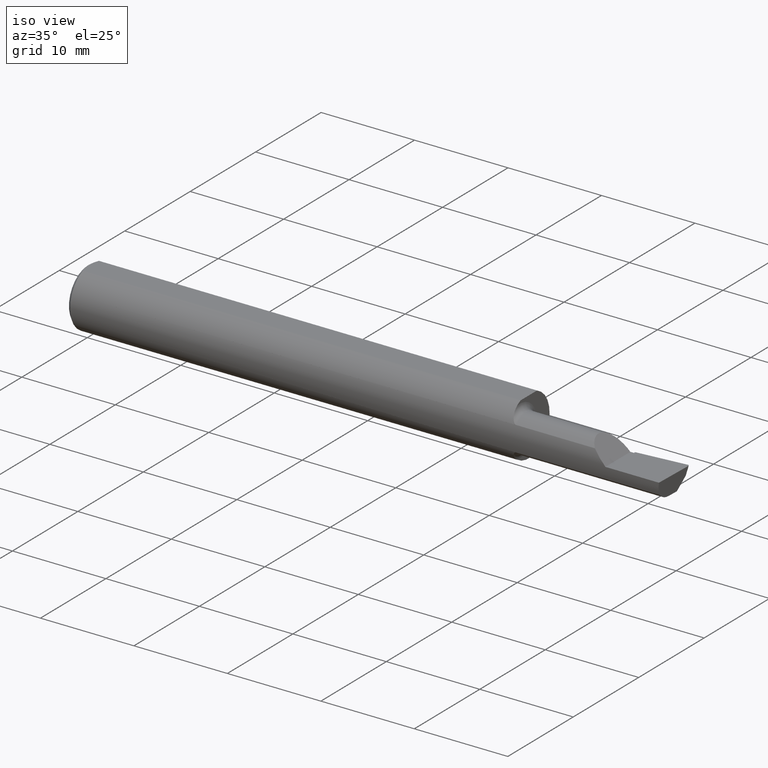
[diagram: clean part render]
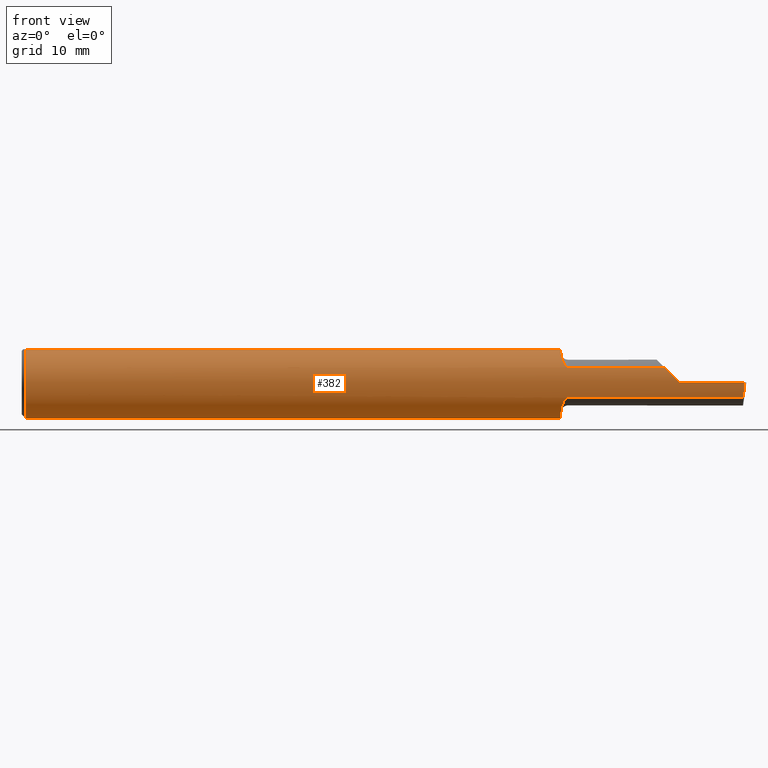
[diagram: tour spotlight — one face highlighted and labeled with its STEP entity id]
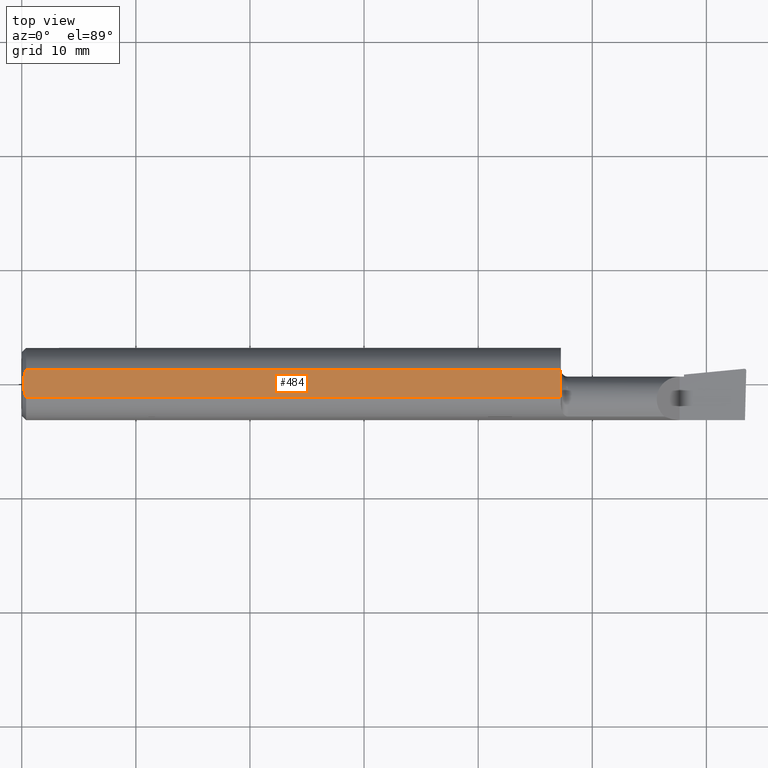
[diagram: tour spotlight — one face highlighted and labeled with its STEP entity id]
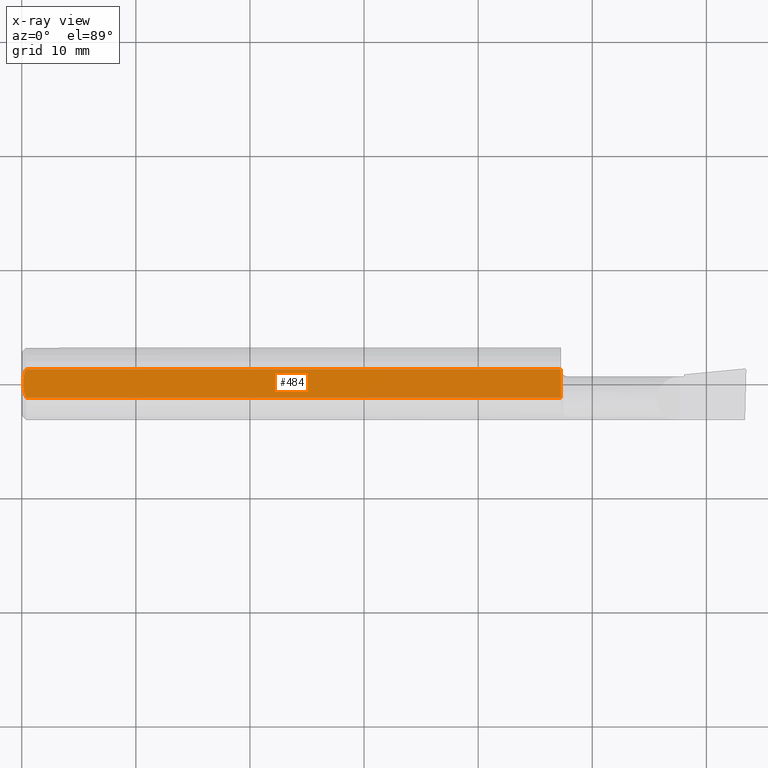
[diagram: x-ray of the same camera — body ghosted, this tour face saturated]
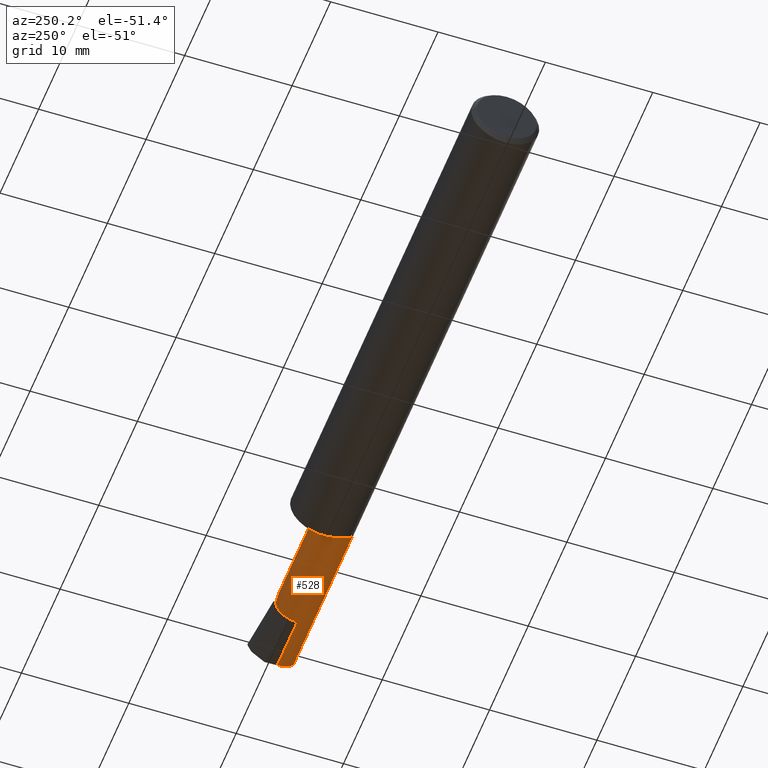
[diagram: tour spotlight — one face highlighted and labeled with its STEP entity id]
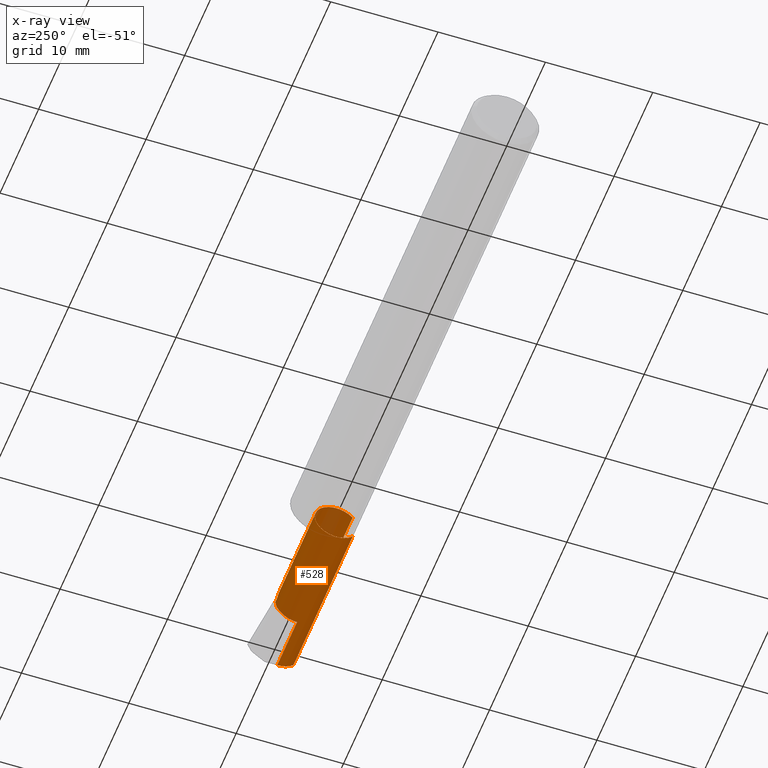
[diagram: x-ray of the same camera — body ghosted, this tour face saturated]
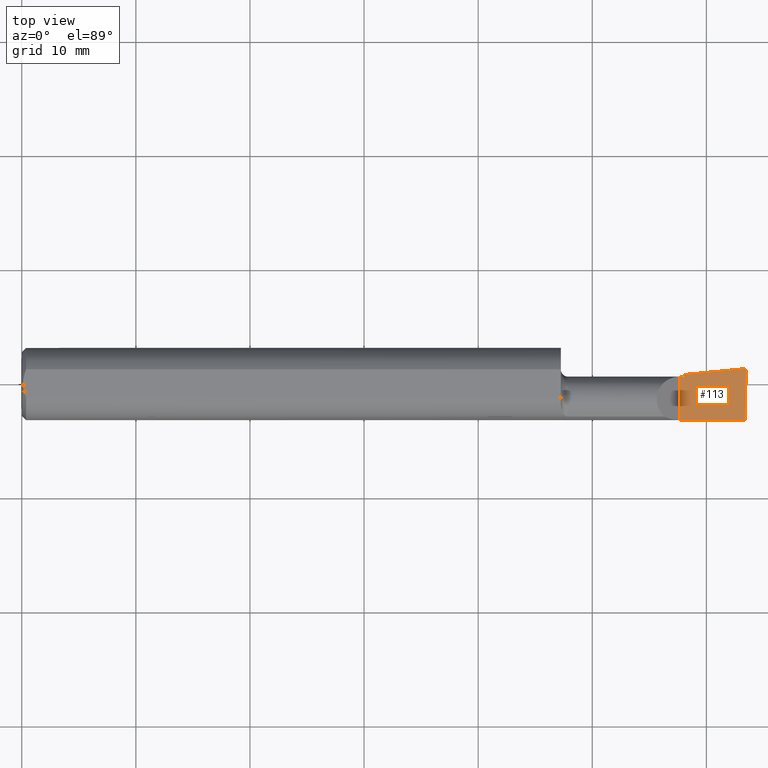
[diagram: tour spotlight — one face highlighted and labeled with its STEP entity id]
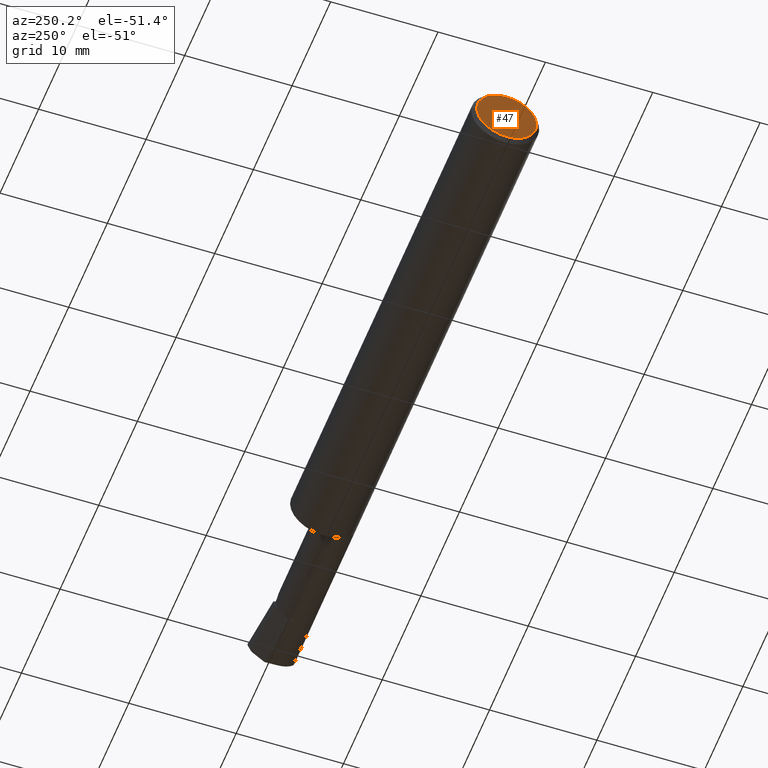
[diagram: tour spotlight — one face highlighted and labeled with its STEP entity id]
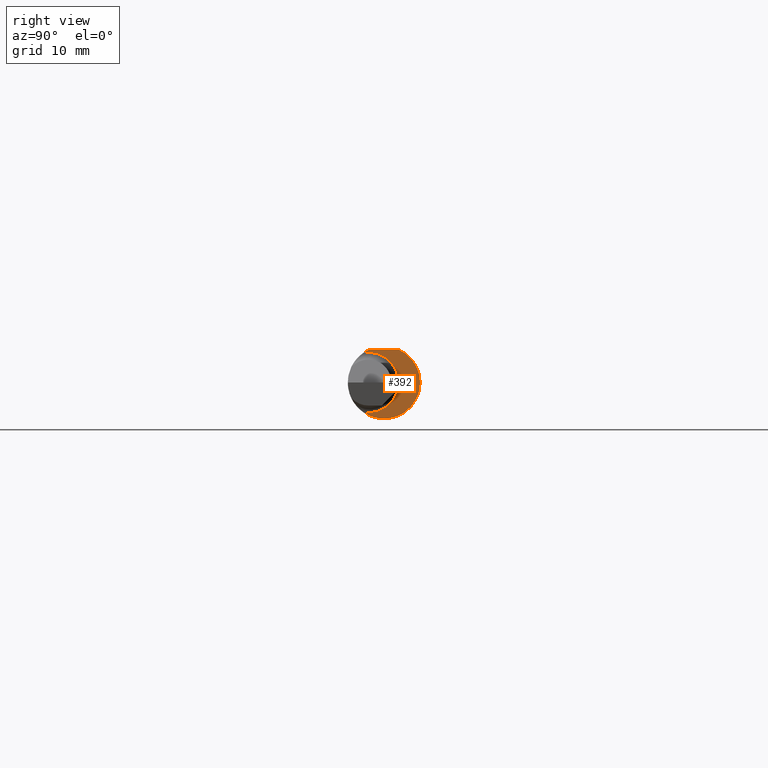
[diagram: tour spotlight — one face highlighted and labeled with its STEP entity id]
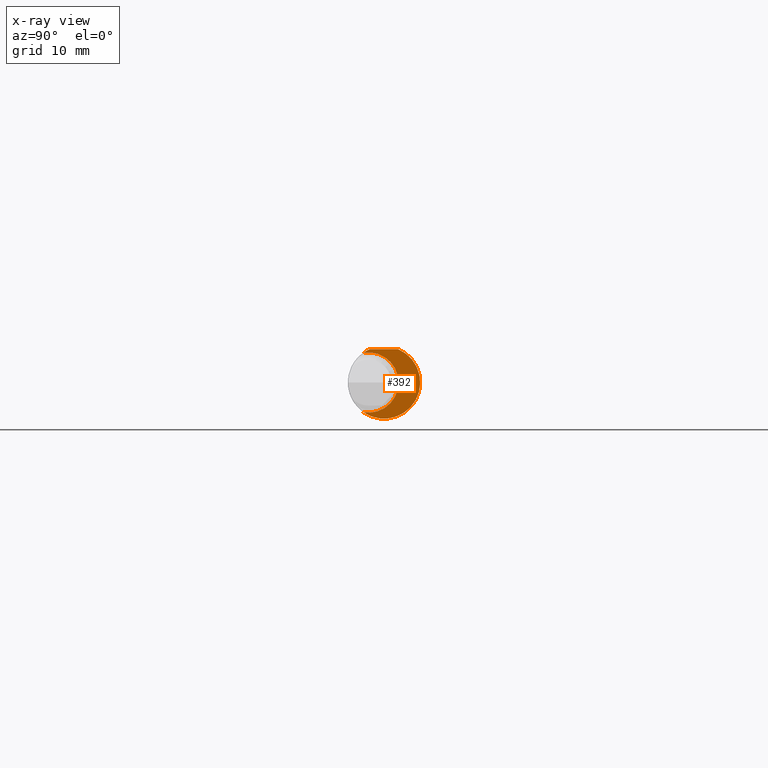
[diagram: x-ray of the same camera — body ghosted, this tour face saturated]
A machine part: a face-by-face anatomy tour. The part has 19 B-rep faces; the first image is the clean iso view, then the 6 largest visible faces are spotlighted one at a time (largest first), each with its STEP entity span.

Face 1 — front view, entity #382. In plain terms, the highlighted cylindrical surface (edge-blend (fillet) strip) has radius 3.1712 mm, axis along (-1, -0, -0).
Definition (entity closure, byte-faithful):
#8 = AXIS2_PLACEMENT_3D ( 'NONE', #100, #424, #656 ) ;
#9 = CARTESIAN_POINT ( 'NONE',  ( 1.859999999999999876, 0.0000000000000000000, 0.0000000000000000000 ) ) ;
#15 = CARTESIAN_POINT ( 'NONE',  ( 0.01499999999999999424, 0.04895916665957457392, 0.1148500000000000076 ) ) ;
#26 = CARTESIAN_POINT ( 'NONE',  ( 1.885000000000000009, -0.1133222222222224629, 0.05239843939104716491 ) ) ;
#33 = VERTEX_POINT ( 'NONE', #329 ) ;
#34 = CARTESIAN_POINT ( 'NONE',  ( 1.860418395875213626, -0.08085314529530901462, 0.09533153891603386720 ) ) ;
#37 = CARTESIAN_POINT ( 'NONE',  ( 2.493107549887203067, -0.1248500000000000165, -0.01816670945505176327 ) ) ;
#43 = CARTESIAN_POINT ( 'NONE',  ( 1.862066153268988611, -0.08982957272875712051, 0.08692514756739018467 ) ) ;
#45 = CARTESIAN_POINT ( 'NONE',  ( 1.883393805215129557, -0.1133222222232598414, 0.05239843938880368174 ) ) ;
#51 = VERTEX_POINT ( 'NONE', #26 ) ;
#54 = CIRCLE ( 'NONE', #434, 0.1248500000000000026 ) ;
#66 = ORIENTED_EDGE ( 'NONE', *, *, #541, .T. ) ;
#68 = CARTESIAN_POINT ( 'NONE',  ( 0.01499999999999999424, 0.0000000000000000000, 0.0000000000000000000 ) ) ;
#74 = EDGE_CURVE ( 'NONE', #172, #258, #538, .T. ) ;
#76 =( BOUNDED_CURVE ( )  B_SPLINE_CURVE ( 3, ( #272, #430, #334, #190 ),
 .UNSPECIFIED., .F., .F. ) 
 B_SPLINE_CURVE_WITH_KNOTS ( ( 4, 4 ),
 ( 4.712388980384688786, 5.145493999647444028 ),
 .UNSPECIFIED. ) 
 CURVE ( )  GEOMETRIC_REPRESENTATION_ITEM ( )  RATIONAL_B_SPLINE_CURVE ( ( 1.000000000000000000, 0.9844293286710339430, 0.9844293286710339430, 1.000000000000000000 ) ) 
 REPRESENTATION_ITEM ( '' )  );
#83 = CARTESIAN_POINT ( 'NONE',  ( 1.883397973893800703, -0.1133222222222223935, -0.05239843939104716491 ) ) ;
#87 = LINE ( 'NONE', #627, #631 ) ;
#91 = EDGE_CURVE ( 'NONE', #112, #522, #219, .T. ) ;
#93 = FACE_OUTER_BOUND ( 'NONE', #301, .T. ) ;
#100 = CARTESIAN_POINT ( 'NONE',  ( 1.859999999999999876, 0.0000000000000000000, 0.0000000000000000000 ) ) ;
#102 = CIRCLE ( 'NONE', #8, 0.1248500000000000026 ) ;
#103 = EDGE_CURVE ( 'NONE', #208, #172, #527, .T. ) ;
#105 = ORIENTED_EDGE ( 'NONE', *, *, #74, .F. ) ;
#109 = CARTESIAN_POINT ( 'NONE',  ( 1.881855009147951785, -0.1130869929873388885, 0.05291095013438952555 ) ) ;
#112 = VERTEX_POINT ( 'NONE', #340 ) ;
#114 = LINE ( 'NONE', #590, #362 ) ;
#125 = ORIENTED_EDGE ( 'NONE', *, *, #353, .F. ) ;
#133 = CARTESIAN_POINT ( 'NONE',  ( 4.111069666048746882E-31, -0.1248499999999999888, 9.802154982235641300E-16 ) ) ;
#139 = VERTEX_POINT ( 'NONE', #657 ) ;
#147 = ORIENTED_EDGE ( 'NONE', *, *, #91, .T. ) ;
#166 = CYLINDRICAL_SURFACE ( 'NONE', #546, 0.1248500000000000026 ) ;
#172 = VERTEX_POINT ( 'NONE', #598 ) ;
#175 = DIRECTION ( 'NONE',  ( 1.000000000000000000, -3.414809992080329023E-18, 0.0000000000000000000 ) ) ;
#181 = CARTESIAN_POINT ( 'NONE',  ( 1.885000000000000009, -0.1133222222222224906, -0.05239843939104713716 ) ) ;
#183 = EDGE_CURVE ( 'NONE', #439, #591, #243, .T. ) ;
#190 = CARTESIAN_POINT ( 'NONE',  ( 2.217601560608951861, -0.1133222222222222964, 0.05239843939104740084 ) ) ;
#208 = VERTEX_POINT ( 'NONE', #15 ) ;
#209 = CARTESIAN_POINT ( 'NONE',  ( 1.878018389903473029, -0.1118940578004067182, -0.05539504279879990667 ) ) ;
#215 = CARTESIAN_POINT ( 'NONE',  ( 1.885000000000000009, -0.1133222222222224629, 0.05239843939104716491 ) ) ;
#219 = LINE ( 'NONE', #133, #553 ) ;
#226 = VERTEX_POINT ( 'NONE', #240 ) ;
#229 = VECTOR ( 'NONE', #427, 39.37007874015748143 ) ;
#231 = CARTESIAN_POINT ( 'NONE',  ( 1.859999999999999876, 0.04895916665957456004, 0.1148500000000000076 ) ) ;
#232 = CARTESIAN_POINT ( 'NONE',  ( 2.270000000000000018, -0.1248500000000000165, 2.816687638038912303E-17 ) ) ;
#234 = ORIENTED_EDGE ( 'NONE', *, *, #357, .T. ) ;
#240 = CARTESIAN_POINT ( 'NONE',  ( 1.859999999999999876, -0.07089166666666681105, 0.1027710761704002246 ) ) ;
#241 = AXIS2_PLACEMENT_3D ( 'NONE', #68, #494, #449 ) ;
#242 = CARTESIAN_POINT ( 'NONE',  ( 1.874878942730255460, -0.1103076286869490719, -0.05852540734030589609 ) ) ;
#243 = B_SPLINE_CURVE_WITH_KNOTS ( 'NONE', 3,
 ( #601, #83, #610, #532, #209, #242, #518, #607, #562, #504, #634, #640, #499, #655 ),
 .UNSPECIFIED., .F., .F.,
 ( 4, 2, 2, 2, 2, 2, 4 ),
 ( 1.961860195742902937E-07, 0.0001199556417433922313, 0.0002397150974672101564, 0.0004792340089148602639, 0.0009582718318101516967, 0.001437309654705443184, 0.001916347477600734888 ),
 .UNSPECIFIED. ) ;
#245 = LINE ( 'NONE', #661, #550 ) ;
#249 = DIRECTION ( 'NONE',  ( -1.000000000000000000, 3.414809992080329023E-18, -0.0000000000000000000 ) ) ;
#253 = CARTESIAN_POINT ( 'NONE',  ( 1.878003366130774898, -0.1118869025553489854, 0.05540929543234544841 ) ) ;
#257 = ORIENTED_EDGE ( 'NONE', *, *, #183, .F. ) ;
#258 = VERTEX_POINT ( 'NONE', #647 ) ;
#269 = ORIENTED_EDGE ( 'NONE', *, *, #654, .F. ) ;
#272 = CARTESIAN_POINT ( 'NONE',  ( 2.270000000000000018, -0.1248500000000000165, 2.816687638038912303E-17 ) ) ;
#274 = DIRECTION ( 'NONE',  ( 0.0000000000000000000, 0.0000000000000000000, 1.000000000000000000 ) ) ;
#277 = AXIS2_PLACEMENT_3D ( 'NONE', #363, #383, #387 ) ;
#278 = ORIENTED_EDGE ( 'NONE', *, *, #103, .F. ) ;
#301 = EDGE_LOOP ( 'NONE', ( #314, #633, #147, #66, #447, #637, #269, #367, #105, #278, #234, #125, #257 ) ) ;
#314 = ORIENTED_EDGE ( 'NONE', *, *, #517, .F. ) ;
#326 = CARTESIAN_POINT ( 'NONE',  ( 1.859999999999999876, -0.07089166666666681105, 0.1027710761704002246 ) ) ;
#329 = CARTESIAN_POINT ( 'NONE',  ( 2.217601560608951861, -0.1133222222222222964, 0.05239843939104740084 ) ) ;
#333 = CARTESIAN_POINT ( 'NONE',  ( 1.859999999999996989, -0.07604212793636098977, 0.09921827904968777423 ) ) ;
#334 = CARTESIAN_POINT ( 'NONE',  ( 2.234090882882976192, -0.1209466293052443298, 0.03590911711702311770 ) ) ;
#336 = CARTESIAN_POINT ( 'NONE',  ( 1.859999999999999876, -0.04895916665957457392, 0.1148500000000000215 ) ) ;
#337 = DIRECTION ( 'NONE',  ( -1.000000000000000000, -0.0000000000000000000, -0.0000000000000000000 ) ) ;
#340 = CARTESIAN_POINT ( 'NONE',  ( 2.495338905960690301, -0.1248500000000000582, -6.632093541198142708E-17 ) ) ;
#349 = DIRECTION ( 'NONE',  ( 0.0000000000000000000, 1.000000000000000000, 0.0000000000000000000 ) ) ;
#353 = EDGE_CURVE ( 'NONE', #591, #543, #54, .T. ) ;
#357 = EDGE_CURVE ( 'NONE', #208, #543, #478, .T. ) ;
#361 = DIRECTION ( 'NONE',  ( -1.000000000000000000, -0.0000000000000000000, -0.0000000000000000000 ) ) ;
#362 = VECTOR ( 'NONE', #602, 39.37007874015748143 ) ;
#363 = CARTESIAN_POINT ( 'NONE',  ( 0.01499999999999999424, 0.0000000000000000000, 0.0000000000000000000 ) ) ;
#367 = ORIENTED_EDGE ( 'NONE', *, *, #470, .T. ) ;
#371 = CARTESIAN_POINT ( 'NONE',  ( 2.489204846642126157, -0.1133222222222222686, -0.05239843939104745635 ) ) ;
#377 = CARTESIAN_POINT ( 'NONE',  ( 0.0000000000000000000, 0.04895916665957457392, 0.1148500000000000076 ) ) ;
#382 = ADVANCED_FACE ( 'NONE', ( #93 ), #166, .T. ) ;
#383 = DIRECTION ( 'NONE',  ( -1.000000000000000000, -0.0000000000000000000, -0.0000000000000000000 ) ) ;
#386 = CARTESIAN_POINT ( 'NONE',  ( 1.859999999999999876, -0.07089166666666681105, -0.1027710761704002246 ) ) ;
#387 = DIRECTION ( 'NONE',  ( 0.0000000000000000000, 0.0000000000000000000, 1.000000000000000000 ) ) ;
#399 = CARTESIAN_POINT ( 'NONE',  ( 0.0000000000000000000, 0.0000000000000000000, 0.0000000000000000000 ) ) ;
#424 = DIRECTION ( 'NONE',  ( 1.000000000000000000, -3.414809992080329023E-18, 0.0000000000000000000 ) ) ;
#427 = DIRECTION ( 'NONE',  ( 1.000000000000000000, 0.0000000000000000000, 0.0000000000000000000 ) ) ;
#430 = CARTESIAN_POINT ( 'NONE',  ( 2.251833290544947630, -0.1248500000000000165, 0.01816670945505155857 ) ) ;
#434 = AXIS2_PLACEMENT_3D ( 'NONE', #9, #175, #349 ) ;
#439 = VERTEX_POINT ( 'NONE', #181 ) ;
#447 = ORIENTED_EDGE ( 'NONE', *, *, #571, .F. ) ;
#449 = DIRECTION ( 'NONE',  ( 0.0000000000000000000, 0.0000000000000000000, 1.000000000000000000 ) ) ;
#450 = DIRECTION ( 'NONE',  ( 1.000000000000000000, -3.414809992080329023E-18, 0.0000000000000000000 ) ) ;
#458 = CARTESIAN_POINT ( 'NONE',  ( 2.495338905960690301, -0.1248500000000000582, -6.632093541198142708E-17 ) ) ;
#470 = EDGE_CURVE ( 'NONE', #616, #258, #114, .T. ) ;
#477 = B_SPLINE_CURVE_WITH_KNOTS ( 'NONE', 3,
 ( #326, #333, #34, #43, #608, #603, #580, #652, #554, #253, #668, #109, #45, #215 ),
 .UNSPECIFIED., .F., .F.,
 ( 4, 2, 2, 2, 2, 2, 4 ),
 ( 6.218642020841583750E-05, 0.0005341583913332114590, 0.001006130362458007013, 0.001478102333582802892, 0.001714088319145205168, 0.001832081311926406523, 0.001950074304707607661 ),
 .UNSPECIFIED. ) ;
#478 = LINE ( 'NONE', #377, #229 ) ;
#494 = DIRECTION ( 'NONE',  ( -1.000000000000000000, -0.0000000000000000000, -0.0000000000000000000 ) ) ;
#499 = CARTESIAN_POINT ( 'NONE',  ( 1.860000000000000542, -0.07605073478940853338, -0.09921234202752114706 ) ) ;
#504 = CARTESIAN_POINT ( 'NONE',  ( 1.863310246323733210, -0.09402499227299764006, -0.08235832246780920574 ) ) ;
#517 = EDGE_CURVE ( 'NONE', #139, #439, #245, .T. ) ;
#518 = CARTESIAN_POINT ( 'NONE',  ( 1.873205018706407765, -0.1090156405642971893, -0.06091562844815626848 ) ) ;
#519 = CARTESIAN_POINT ( 'NONE',  ( 2.491030522740640851, -0.1209466293052442881, -0.03590911711702332587 ) ) ;
#522 = VERTEX_POINT ( 'NONE', #232 ) ;
#523 =( BOUNDED_CURVE ( )  B_SPLINE_CURVE ( 3, ( #371, #519, #37, #458 ),
 .UNSPECIFIED., .F., .F. ) 
 B_SPLINE_CURVE_WITH_KNOTS ( ( 4, 4 ),
 ( 0.9276418632516096885, 1.360746882514365153 ),
 .UNSPECIFIED. ) 
 CURVE ( )  GEOMETRIC_REPRESENTATION_ITEM ( )  RATIONAL_B_SPLINE_CURVE ( ( 1.000000000000000000, 0.9844293286710339430, 0.9844293286710339430, 1.000000000000000000 ) ) 
 REPRESENTATION_ITEM ( '' )  );
#526 = EDGE_CURVE ( 'NONE', #139, #112, #523, .T. ) ;
#527 = CIRCLE ( 'NONE', #277, 0.1248500000000000026 ) ;
#532 = CARTESIAN_POINT ( 'NONE',  ( 1.879195140613334258, -0.1123729516825159175, -0.05441079362540543474 ) ) ;
#538 = CIRCLE ( 'NONE', #241, 0.1248500000000000026 ) ;
#541 = EDGE_CURVE ( 'NONE', #522, #33, #76, .T. ) ;
#543 = VERTEX_POINT ( 'NONE', #231 ) ;
#546 = AXIS2_PLACEMENT_3D ( 'NONE', #399, #361, #274 ) ;
#550 = VECTOR ( 'NONE', #249, 39.37007874015748143 ) ;
#553 = VECTOR ( 'NONE', #337, 39.37007874015748143 ) ;
#554 = CARTESIAN_POINT ( 'NONE',  ( 1.874891482046761260, -0.1103130882036817972, 0.05851436580809103033 ) ) ;
#561 = EDGE_CURVE ( 'NONE', #226, #51, #477, .T. ) ;
#562 = CARTESIAN_POINT ( 'NONE',  ( 1.866709462345915949, -0.1014961360546401820, -0.07295290821911683266 ) ) ;
#571 = EDGE_CURVE ( 'NONE', #51, #33, #87, .T. ) ;
#580 = CARTESIAN_POINT ( 'NONE',  ( 1.868812999615359294, -0.1047986892473506820, 0.06808587976958048460 ) ) ;
#590 = CARTESIAN_POINT ( 'NONE',  ( 0.0000000000000000000, -0.04895916665957456004, 0.1148500000000000076 ) ) ;
#591 = VERTEX_POINT ( 'NONE', #386 ) ;
#598 = CARTESIAN_POINT ( 'NONE',  ( 0.01499999999999999424, 0.0000000000000000000, -0.1248500000000000026 ) ) ;
#601 = CARTESIAN_POINT ( 'NONE',  ( 1.885000000000000009, -0.1133222222222224906, -0.05239843939104713716 ) ) ;
#602 = DIRECTION ( 'NONE',  ( -1.000000000000000000, -0.0000000000000000000, -0.0000000000000000000 ) ) ;
#603 = CARTESIAN_POINT ( 'NONE',  ( 1.866702553529778541, -0.1014824713796367711, 0.07297083456247513422 ) ) ;
#607 = CARTESIAN_POINT ( 'NONE',  ( 1.868837986083219826, -0.1048226606062679644, -0.06804511026469593771 ) ) ;
#608 = CARTESIAN_POINT ( 'NONE',  ( 1.863311842522019202, -0.09402697795089831612, 0.08235509766544014953 ) ) ;
#610 = CARTESIAN_POINT ( 'NONE',  ( 1.881867218484672533, -0.1130881303947561811, -0.05290831216931943942 ) ) ;
#616 = VERTEX_POINT ( 'NONE', #336 ) ;
#627 = CARTESIAN_POINT ( 'NONE',  ( 2.084999999999999964, -0.1133222222222222686, 0.05239843939104745635 ) ) ;
#631 = VECTOR ( 'NONE', #450, 39.37007874015748143 ) ;
#633 = ORIENTED_EDGE ( 'NONE', *, *, #526, .T. ) ;
#634 = CARTESIAN_POINT ( 'NONE',  ( 1.862089430766777465, -0.08992021952243413330, -0.08683155323701791106 ) ) ;
#637 = ORIENTED_EDGE ( 'NONE', *, *, #561, .F. ) ;
#640 = CARTESIAN_POINT ( 'NONE',  ( 1.860429435078794880, -0.08094870196673342733, -0.09525057567498898536 ) ) ;
#647 = CARTESIAN_POINT ( 'NONE',  ( 0.01499999999999999077, -0.04895916665957456004, 0.1148500000000000215 ) ) ;
#652 = CARTESIAN_POINT ( 'NONE',  ( 1.873217602974939888, -0.1090277136498280092, 0.06089509507572508223 ) ) ;
#654 = EDGE_CURVE ( 'NONE', #616, #226, #102, .T. ) ;
#655 = CARTESIAN_POINT ( 'NONE',  ( 1.859999999999999876, -0.07089166666666681105, -0.1027710761704002246 ) ) ;
#656 = DIRECTION ( 'NONE',  ( 0.0000000000000000000, 1.000000000000000000, 0.0000000000000000000 ) ) ;
#657 = CARTESIAN_POINT ( 'NONE',  ( 2.489204846642126157, -0.1133222222222222686, -0.05239843939104745635 ) ) ;
#661 = CARTESIAN_POINT ( 'NONE',  ( 2.084999999999999964, -0.1133222222222222686, -0.05239843939104745635 ) ) ;
#668 = CARTESIAN_POINT ( 'NONE',  ( 1.879156347344547839, -0.1123603976562052298, 0.05443691454869314938 ) ) ;

Face 2 — top view, entity #484. An x-ray twin of the same camera follows (body ghosted, this face saturated) — the face is partly hidden behind the body. In plain terms, the highlighted planar face has unit normal (0, -0, -1).
Definition (entity closure, byte-faithful):
#14 = DIRECTION ( 'NONE',  ( 0.0000000000000000000, -4.882484975808304553E-17, -1.000000000000000000 ) ) ;
#15 = CARTESIAN_POINT ( 'NONE',  ( 0.01499999999999999424, 0.04895916665957457392, 0.1148500000000000076 ) ) ;
#48 = B_SPLINE_CURVE_WITH_KNOTS ( 'NONE', 3,
 ( #237, #613, #345, #342, #307, #649 ),
 .UNSPECIFIED., .F., .F.,
 ( 4, 2, 4 ),
 ( 0.002298356357403497086, 0.002932796277434359007, 0.003567236197465221362 ),
 .UNSPECIFIED. ) ;
#56 = FACE_OUTER_BOUND ( 'NONE', #251, .T. ) ;
#72 = ORIENTED_EDGE ( 'NONE', *, *, #487, .F. ) ;
#108 = ORIENTED_EDGE ( 'NONE', *, *, #470, .F. ) ;
#114 = LINE ( 'NONE', #590, #362 ) ;
#174 = B_SPLINE_CURVE_WITH_KNOTS ( 'NONE', 3,
 ( #339, #305, #635, #629, #573, #485 ),
 .UNSPECIFIED., .F., .F.,
 ( 4, 2, 4 ),
 ( 0.001029394377391489035, 0.001663875367397493060, 0.002298356357403497086 ),
 .UNSPECIFIED. ) ;
#208 = VERTEX_POINT ( 'NONE', #15 ) ;
#229 = VECTOR ( 'NONE', #427, 39.37007874015748143 ) ;
#231 = CARTESIAN_POINT ( 'NONE',  ( 1.859999999999999876, 0.04895916665957456004, 0.1148500000000000076 ) ) ;
#237 = CARTESIAN_POINT ( 'NONE',  ( 0.005000000000000237761, 1.454187638523587873E-17, 0.1148500000000000076 ) ) ;
#247 = VECTOR ( 'NONE', #375, 39.37007874015748143 ) ;
#251 = EDGE_LOOP ( 'NONE', ( #347, #663, #642, #72, #108 ) ) ;
#258 = VERTEX_POINT ( 'NONE', #647 ) ;
#284 = VERTEX_POINT ( 'NONE', #437 ) ;
#305 = CARTESIAN_POINT ( 'NONE',  ( 0.01195732443765553168, -0.04120008761723500251, 0.1148500000000000215 ) ) ;
#307 = CARTESIAN_POINT ( 'NONE',  ( 0.01193974418109659645, 0.04115525648180389656, 0.1148500000000000076 ) ) ;
#311 = DIRECTION ( 'NONE',  ( 0.0000000000000000000, 1.000000000000000000, -4.882484975808304553E-17 ) ) ;
#319 = LINE ( 'NONE', #370, #247 ) ;
#336 = CARTESIAN_POINT ( 'NONE',  ( 1.859999999999999876, -0.04895916665957457392, 0.1148500000000000215 ) ) ;
#339 = CARTESIAN_POINT ( 'NONE',  ( 0.01499999999999999077, -0.04895916665957456004, 0.1148500000000000215 ) ) ;
#342 = CARTESIAN_POINT ( 'NONE',  ( 0.009410502401328815075, 0.03310661131402416191, 0.1148500000000000076 ) ) ;
#345 = CARTESIAN_POINT ( 'NONE',  ( 0.005947935873631425563, 0.01679708999422678192, 0.1148499999999999938 ) ) ;
#347 = ORIENTED_EDGE ( 'NONE', *, *, #432, .F. ) ;
#357 = EDGE_CURVE ( 'NONE', #208, #543, #478, .T. ) ;
#362 = VECTOR ( 'NONE', #602, 39.37007874015748143 ) ;
#370 = CARTESIAN_POINT ( 'NONE',  ( 1.859999999999999876, 0.1748500000000000054, 0.1148500000000000076 ) ) ;
#375 = DIRECTION ( 'NONE',  ( -3.414809992080329023E-18, -1.000000000000000000, 4.882484975808304553E-17 ) ) ;
#377 = CARTESIAN_POINT ( 'NONE',  ( 0.0000000000000000000, 0.04895916665957457392, 0.1148500000000000076 ) ) ;
#427 = DIRECTION ( 'NONE',  ( 1.000000000000000000, 0.0000000000000000000, 0.0000000000000000000 ) ) ;
#432 = EDGE_CURVE ( 'NONE', #543, #616, #319, .T. ) ;
#437 = CARTESIAN_POINT ( 'NONE',  ( 0.005000000000000237761, 1.454187638523587873E-17, 0.1148500000000000076 ) ) ;
#470 = EDGE_CURVE ( 'NONE', #616, #258, #114, .T. ) ;
#478 = LINE ( 'NONE', #377, #229 ) ;
#481 = CARTESIAN_POINT ( 'NONE',  ( 2.500000000000000000, 0.1748500000000000054, 0.1148500000000000076 ) ) ;
#484 = ADVANCED_FACE ( 'NONE', ( #56 ), #597, .F. ) ;
#485 = CARTESIAN_POINT ( 'NONE',  ( 0.005000000000000237761, 1.454187638523587873E-17, 0.1148500000000000076 ) ) ;
#487 = EDGE_CURVE ( 'NONE', #258, #284, #174, .T. ) ;
#543 = VERTEX_POINT ( 'NONE', #231 ) ;
#555 = AXIS2_PLACEMENT_3D ( 'NONE', #481, #14, #311 ) ;
#573 = CARTESIAN_POINT ( 'NONE',  ( 0.005000000000000194393, -0.008410771716546815852, 0.1148500000000000076 ) ) ;
#578 = EDGE_CURVE ( 'NONE', #284, #208, #48, .T. ) ;
#590 = CARTESIAN_POINT ( 'NONE',  ( 0.0000000000000000000, -0.04895916665957456004, 0.1148500000000000076 ) ) ;
#597 = PLANE ( 'NONE',  #555 ) ;
#602 = DIRECTION ( 'NONE',  ( -1.000000000000000000, -0.0000000000000000000, -0.0000000000000000000 ) ) ;
#613 = CARTESIAN_POINT ( 'NONE',  ( 0.005000000000000195260, 0.008410227287019747533, 0.1148500000000000215 ) ) ;
#616 = VERTEX_POINT ( 'NONE', #336 ) ;
#629 = CARTESIAN_POINT ( 'NONE',  ( 0.005932194444709924276, -0.01671525318617307979, 0.1148500000000000215 ) ) ;
#635 = CARTESIAN_POINT ( 'NONE',  ( 0.009415874254822530556, -0.03313958207962815899, 0.1148500000000000354 ) ) ;
#642 = ORIENTED_EDGE ( 'NONE', *, *, #578, .F. ) ;
#647 = CARTESIAN_POINT ( 'NONE',  ( 0.01499999999999999077, -0.04895916665957456004, 0.1148500000000000215 ) ) ;
#649 = CARTESIAN_POINT ( 'NONE',  ( 0.01499999999999999424, 0.04895916665957457392, 0.1148500000000000076 ) ) ;
#663 = ORIENTED_EDGE ( 'NONE', *, *, #357, .F. ) ;

Face 3 — auxiliary view, entity #528. An x-ray twin of the same camera follows (body ghosted, this face saturated) — the face is partly hidden behind the body. In plain terms, the highlighted cylindrical surface (edge-blend (fillet) strip) has radius 2.0104 mm, axis along (-1, 0, -0).
Definition (entity closure, byte-faithful):
#12 = ORIENTED_EDGE ( 'NONE', *, *, #448, .F. ) ;
#22 = CARTESIAN_POINT ( 'NONE',  ( 2.487472449114545014, -0.05399999999999999939, -0.07914999999999994262 ) ) ;
#25 = VERTEX_POINT ( 'NONE', #128 ) ;
#26 = CARTESIAN_POINT ( 'NONE',  ( 1.885000000000000009, -0.1133222222222224629, 0.05239843939104716491 ) ) ;
#32 = EDGE_LOOP ( 'NONE', ( #346, #482, #592, #566, #611, #544, #168, #12, #285, #99 ) ) ;
#33 = VERTEX_POINT ( 'NONE', #329 ) ;
#51 = VERTEX_POINT ( 'NONE', #26 ) ;
#55 = AXIS2_PLACEMENT_3D ( 'NONE', #491, #495, #525 ) ;
#57 = VERTEX_POINT ( 'NONE', #252 ) ;
#58 = CARTESIAN_POINT ( 'NONE',  ( 2.486868858499483803, -0.07705019563525709880, -0.07914999999999998426 ) ) ;
#60 = LINE ( 'NONE', #282, #142 ) ;
#87 = LINE ( 'NONE', #627, #631 ) ;
#99 = ORIENTED_EDGE ( 'NONE', *, *, #667, .F. ) ;
#111 = CARTESIAN_POINT ( 'NONE',  ( 2.285000000000000142, -0.05399999999999999939, 0.0000000000000000000 ) ) ;
#117 = DIRECTION ( 'NONE',  ( -1.000000000000000000, 3.414809992080329023E-18, -0.0000000000000000000 ) ) ;
#120 = CIRCLE ( 'NONE', #594, 0.07914999999999995650 ) ;
#128 = CARTESIAN_POINT ( 'NONE',  ( 2.285000000000000142, -0.01935479767416507443, -0.07116482597324295944 ) ) ;
#135 = CIRCLE ( 'NONE', #55, 0.07914999999999992875 ) ;
#139 = VERTEX_POINT ( 'NONE', #657 ) ;
#140 = DIRECTION ( 'NONE',  ( -3.414809992080329408E-18, -1.000000000000000000, 0.0000000000000000000 ) ) ;
#142 = VECTOR ( 'NONE', #210, 39.37007874015748143 ) ;
#153 = CARTESIAN_POINT ( 'NONE',  ( 2.702822108735689715E-19, 0.02514999999999995364, 9.802154982235641300E-16 ) ) ;
#155 = AXIS2_PLACEMENT_3D ( 'NONE', #111, #599, #539 ) ;
#157 = DIRECTION ( 'NONE',  ( -1.000000000000000000, 3.414809992080329023E-18, -0.0000000000000000000 ) ) ;
#163 = CARTESIAN_POINT ( 'NONE',  ( 2.489204846642126157, -0.1133222222222222686, -0.05239843939104745635 ) ) ;
#168 = ORIENTED_EDGE ( 'NONE', *, *, #412, .T. ) ;
#171 = DIRECTION ( 'NONE',  ( 0.0000000000000000000, -1.000000000000000000, 0.0000000000000000000 ) ) ;
#181 = CARTESIAN_POINT ( 'NONE',  ( 1.885000000000000009, -0.1133222222222224906, -0.05239843939104713716 ) ) ;
#192 = VERTEX_POINT ( 'NONE', #638 ) ;
#198 = CIRCLE ( 'NONE', #575, 0.07914999999999995650 ) ;
#210 = DIRECTION ( 'NONE',  ( -1.000000000000000000, 5.691349986800549142E-18, -0.0000000000000000000 ) ) ;
#233 = CARTESIAN_POINT ( 'NONE',  ( 2.285000000000000142, -0.05399999999999999939, 0.0000000000000000000 ) ) ;
#245 = LINE ( 'NONE', #661, #550 ) ;
#249 = DIRECTION ( 'NONE',  ( -1.000000000000000000, 3.414809992080329023E-18, -0.0000000000000000000 ) ) ;
#250 =( BOUNDED_CURVE ( )  B_SPLINE_CURVE ( 3, ( #586, #593, #576, #529 ),
 .UNSPECIFIED., .F., .F. ) 
 B_SPLINE_CURVE_WITH_KNOTS ( ( 4, 4 ),
 ( 5.435892245814750723, 7.853981633974484566 ),
 .UNSPECIFIED. ) 
 CURVE ( )  GEOMETRIC_REPRESENTATION_ITEM ( )  RATIONAL_B_SPLINE_CURVE ( ( 1.000000000000000000, 0.5692753596694914986, 0.5692753596694914986, 1.000000000000000000 ) ) 
 REPRESENTATION_ITEM ( '' )  );
#252 = CARTESIAN_POINT ( 'NONE',  ( 2.285000000000000142, 0.01818157456899031216, -0.03247372465149760828 ) ) ;
#267 = EDGE_CURVE ( 'NONE', #192, #390, #380, .T. ) ;
#275 =( BOUNDED_CURVE ( )  B_SPLINE_CURVE ( 3, ( #163, #547, #58, #463 ),
 .UNSPECIFIED., .F., .F. ) 
 B_SPLINE_CURVE_WITH_KNOTS ( ( 4, 4 ),
 ( 5.645941690095283683, 6.493234751460117415 ),
 .UNSPECIFIED. ) 
 CURVE ( )  GEOMETRIC_REPRESENTATION_ITEM ( )  RATIONAL_B_SPLINE_CURVE ( ( 1.000000000000000000, 0.9410639745696125491, 0.9410639745696125491, 1.000000000000000000 ) ) 
 REPRESENTATION_ITEM ( '' )  );
#281 = DIRECTION ( 'NONE',  ( 1.000000000000000000, -3.414809992080329023E-18, 0.0000000000000000000 ) ) ;
#282 = CARTESIAN_POINT ( 'NONE',  ( 2.500000000000000000, -0.05399999999999999939, -0.07914999999999994262 ) ) ;
#285 = ORIENTED_EDGE ( 'NONE', *, *, #549, .T. ) ;
#288 = VERTEX_POINT ( 'NONE', #22 ) ;
#306 = CYLINDRICAL_SURFACE ( 'NONE', #612, 0.07914999999999995650 ) ;
#321 = DIRECTION ( 'NONE',  ( 0.0000000000000000000, -1.000000000000000000, 0.0000000000000000000 ) ) ;
#329 = CARTESIAN_POINT ( 'NONE',  ( 2.217601560608951861, -0.1133222222222222964, 0.05239843939104740084 ) ) ;
#346 = ORIENTED_EDGE ( 'NONE', *, *, #381, .F. ) ;
#380 = LINE ( 'NONE', #153, #473 ) ;
#381 = EDGE_CURVE ( 'NONE', #139, #288, #275, .T. ) ;
#389 = EDGE_CURVE ( 'NONE', #33, #192, #250, .T. ) ;
#390 = VERTEX_POINT ( 'NONE', #568 ) ;
#412 = EDGE_CURVE ( 'NONE', #390, #57, #120, .T. ) ;
#439 = VERTEX_POINT ( 'NONE', #181 ) ;
#442 = CIRCLE ( 'NONE', #155, 0.07914999999999995650 ) ;
#448 = EDGE_CURVE ( 'NONE', #25, #57, #442, .T. ) ;
#450 = DIRECTION ( 'NONE',  ( 1.000000000000000000, -3.414809992080329023E-18, 0.0000000000000000000 ) ) ;
#463 = CARTESIAN_POINT ( 'NONE',  ( 2.487472449114545014, -0.05399999999999999939, -0.07914999999999994262 ) ) ;
#473 = VECTOR ( 'NONE', #281, 39.37007874015748143 ) ;
#474 = VERTEX_POINT ( 'NONE', #530 ) ;
#482 = ORIENTED_EDGE ( 'NONE', *, *, #517, .T. ) ;
#491 = CARTESIAN_POINT ( 'NONE',  ( 1.885000000000000009, -0.05399999999999999939, 0.0000000000000000000 ) ) ;
#495 = DIRECTION ( 'NONE',  ( -1.000000000000000000, 3.414809992080329023E-18, -0.0000000000000000000 ) ) ;
#506 = EDGE_CURVE ( 'NONE', #51, #439, #135, .T. ) ;
#517 = EDGE_CURVE ( 'NONE', #139, #439, #245, .T. ) ;
#525 = DIRECTION ( 'NONE',  ( 0.0000000000000000000, -1.000000000000000000, 0.0000000000000000000 ) ) ;
#528 = ADVANCED_FACE ( 'NONE', ( #533 ), #306, .T. ) ;
#529 = CARTESIAN_POINT ( 'NONE',  ( 2.270000000000000018, 0.02514999999999993630, 2.816687638038912303E-17 ) ) ;
#530 = CARTESIAN_POINT ( 'NONE',  ( 2.285000000000000142, -0.05399999999999999939, -0.07914999999999994262 ) ) ;
#533 = FACE_OUTER_BOUND ( 'NONE', #32, .T. ) ;
#534 = CARTESIAN_POINT ( 'NONE',  ( 2.285000000000000142, -0.05399999999999999939, 0.0000000000000000000 ) ) ;
#539 = DIRECTION ( 'NONE',  ( 0.0000000000000000000, -1.000000000000000000, -1.776356839400250465E-15 ) ) ;
#544 = ORIENTED_EDGE ( 'NONE', *, *, #267, .T. ) ;
#545 = CARTESIAN_POINT ( 'NONE',  ( 0.0000000000000000000, -0.05399999999999999245, 0.0000000000000000000 ) ) ;
#547 = CARTESIAN_POINT ( 'NONE',  ( 2.487482489302630828, -0.09806266089631188176, -0.06967435635555055407 ) ) ;
#549 = EDGE_CURVE ( 'NONE', #25, #474, #198, .T. ) ;
#550 = VECTOR ( 'NONE', #249, 39.37007874015748143 ) ;
#566 = ORIENTED_EDGE ( 'NONE', *, *, #571, .T. ) ;
#568 = CARTESIAN_POINT ( 'NONE',  ( 2.285000000000000142, 0.02514999999999996058, 9.802154982235643272E-16 ) ) ;
#571 = EDGE_CURVE ( 'NONE', #51, #33, #87, .T. ) ;
#575 = AXIS2_PLACEMENT_3D ( 'NONE', #534, #117, #321 ) ;
#576 = CARTESIAN_POINT ( 'NONE',  ( 2.183308174668249890, 0.02515000000000010977, 0.08669182533174922545 ) ) ;
#583 = DIRECTION ( 'NONE',  ( -1.000000000000000000, 3.414809992080329023E-18, -0.0000000000000000000 ) ) ;
#586 = CARTESIAN_POINT ( 'NONE',  ( 2.217601560608951861, -0.1133222222222222964, 0.05239843939104740084 ) ) ;
#592 = ORIENTED_EDGE ( 'NONE', *, *, #506, .F. ) ;
#593 = CARTESIAN_POINT ( 'NONE',  ( 2.152626807264919506, -0.05593098589442786067, 0.1173731927350792209 ) ) ;
#594 = AXIS2_PLACEMENT_3D ( 'NONE', #233, #157, #171 ) ;
#599 = DIRECTION ( 'NONE',  ( 1.000000000000000000, -3.414809992080329023E-18, 0.0000000000000000000 ) ) ;
#611 = ORIENTED_EDGE ( 'NONE', *, *, #389, .T. ) ;
#612 = AXIS2_PLACEMENT_3D ( 'NONE', #545, #583, #140 ) ;
#627 = CARTESIAN_POINT ( 'NONE',  ( 2.084999999999999964, -0.1133222222222222686, 0.05239843939104745635 ) ) ;
#631 = VECTOR ( 'NONE', #450, 39.37007874015748143 ) ;
#638 = CARTESIAN_POINT ( 'NONE',  ( 2.270000000000000018, 0.02514999999999993630, 2.816687638038912303E-17 ) ) ;
#657 = CARTESIAN_POINT ( 'NONE',  ( 2.489204846642126157, -0.1133222222222222686, -0.05239843939104745635 ) ) ;
#661 = CARTESIAN_POINT ( 'NONE',  ( 2.084999999999999964, -0.1133222222222222686, -0.05239843939104745635 ) ) ;
#667 = EDGE_CURVE ( 'NONE', #288, #474, #60, .T. ) ;

Face 4 — top view, entity #113. In plain terms, the highlighted planar face has unit normal (-0, 0, -1).
Definition (entity closure, byte-faithful):
#2 = CARTESIAN_POINT ( 'NONE',  ( 2.492906680581910006, 0.05246699102467097114, -6.532122848641467145E-17 ) ) ;
#5 =( BOUNDED_CURVE ( )  B_SPLINE_CURVE ( 3, ( #512, #471, #457, #516 ),
 .UNSPECIFIED., .F., .T. ) 
 B_SPLINE_CURVE_WITH_KNOTS ( ( 4, 4 ),
 ( 3.511516179717970587, 3.604018710826568661 ),
 .UNSPECIFIED. ) 
 CURVE ( )  GEOMETRIC_REPRESENTATION_ITEM ( )  RATIONAL_B_SPLINE_CURVE ( ( 1.000000000000000000, 0.9992870672494007511, 0.9992870672494007511, 1.000000000000000000 ) ) 
 REPRESENTATION_ITEM ( '' )  );
#73 = CARTESIAN_POINT ( 'NONE',  ( 2.499910038027521875, 0.04971449087509932641, -5.401409214261199455E-17 ) ) ;
#91 = EDGE_CURVE ( 'NONE', #112, #522, #219, .T. ) ;
#95 = CARTESIAN_POINT ( 'NONE',  ( 2.285000000000000142, 0.03244785463753242782, 9.838921289681448013E-16 ) ) ;
#112 = VERTEX_POINT ( 'NONE', #340 ) ;
#113 = ADVANCED_FACE ( 'NONE', ( #262 ), #391, .F. ) ;
#133 = CARTESIAN_POINT ( 'NONE',  ( 4.111069666048746882E-31, -0.1248499999999999888, 9.802154982235641300E-16 ) ) ;
#141 = ORIENTED_EDGE ( 'NONE', *, *, #600, .T. ) ;
#148 = EDGE_CURVE ( 'NONE', #643, #440, #5, .T. ) ;
#153 = CARTESIAN_POINT ( 'NONE',  ( 2.702822108735689715E-19, 0.02514999999999995364, 9.802154982235641300E-16 ) ) ;
#158 = DIRECTION ( 'NONE',  ( 0.9953961983671787417, 0.09584575252022459191, -4.174738232790345673E-16 ) ) ;
#186 = LINE ( 'NONE', #625, #433 ) ;
#188 = LINE ( 'NONE', #639, #400 ) ;
#192 = VERTEX_POINT ( 'NONE', #638 ) ;
#219 = LINE ( 'NONE', #133, #553 ) ;
#227 = ORIENTED_EDGE ( 'NONE', *, *, #299, .T. ) ;
#232 = CARTESIAN_POINT ( 'NONE',  ( 2.270000000000000018, -0.1248500000000000165, 2.816687638038912303E-17 ) ) ;
#262 = FACE_OUTER_BOUND ( 'NONE', #410, .T. ) ;
#267 = EDGE_CURVE ( 'NONE', #192, #390, #380, .T. ) ;
#270 = ORIENTED_EDGE ( 'NONE', *, *, #148, .T. ) ;
#281 = DIRECTION ( 'NONE',  ( 1.000000000000000000, -3.414809992080329023E-18, 0.0000000000000000000 ) ) ;
#290 = CARTESIAN_POINT ( 'NONE',  ( 1.387204702863203742, -0.05399999999999999939, 3.984153547983287662E-16 ) ) ;
#291 = AXIS2_PLACEMENT_3D ( 'NONE', #394, #405, #423 ) ;
#293 = CARTESIAN_POINT ( 'NONE',  ( 2.499806390372796727, 0.04575634663142221642, -6.816679106956250628E-17 ) ) ;
#294 = DIRECTION ( 'NONE',  ( 0.02617694830793584199, 0.9996573249755555945, -1.081567693923432241E-17 ) ) ;
#299 = EDGE_CURVE ( 'NONE', #502, #643, #624, .T. ) ;
#304 = VECTOR ( 'NONE', #418, 39.37007874015748143 ) ;
#308 = EDGE_CURVE ( 'NONE', #522, #192, #188, .T. ) ;
#332 = ORIENTED_EDGE ( 'NONE', *, *, #369, .F. ) ;
#337 = DIRECTION ( 'NONE',  ( -1.000000000000000000, -0.0000000000000000000, -0.0000000000000000000 ) ) ;
#340 = CARTESIAN_POINT ( 'NONE',  ( 2.495338905960690301, -0.1248500000000000582, -6.632093541198142708E-17 ) ) ;
#355 = CARTESIAN_POINT ( 'NONE',  ( 2.493512870449331675, 0.05249616680637379795, -5.122214988120493535E-17 ) ) ;
#358 = CARTESIAN_POINT ( 'NONE',  ( 2.285000000000000142, -0.2500000000000000555, 2.187580619199813988E-17 ) ) ;
#368 = LINE ( 'NONE', #290, #493 ) ;
#369 = EDGE_CURVE ( 'NONE', #426, #440, #368, .T. ) ;
#380 = LINE ( 'NONE', #153, #473 ) ;
#390 = VERTEX_POINT ( 'NONE', #568 ) ;
#391 = PLANE ( 'NONE',  #291 ) ;
#394 = CARTESIAN_POINT ( 'NONE',  ( 2.500000000000000000, -0.2500000000000000555, -6.829619984160658046E-17 ) ) ;
#400 = VECTOR ( 'NONE', #501, 39.37007874015748143 ) ;
#405 = DIRECTION ( 'NONE',  ( -4.194046792260684025E-16, 0.0000000000000000000, -1.000000000000000000 ) ) ;
#410 = EDGE_LOOP ( 'NONE', ( #141, #227, #270, #332, #419, #650, #531, #476 ) ) ;
#418 = DIRECTION ( 'NONE',  ( 3.414809992080329408E-18, 1.000000000000000000, -1.432187289346423802E-33 ) ) ;
#419 = ORIENTED_EDGE ( 'NONE', *, *, #574, .F. ) ;
#423 = DIRECTION ( 'NONE',  ( -1.000000000000000000, 0.0000000000000000000, 4.194046792260684025E-16 ) ) ;
#426 = VERTEX_POINT ( 'NONE', #95 ) ;
#428 = CARTESIAN_POINT ( 'NONE',  ( 2.493512870449331675, 0.05249616680637379795, -5.122214988120493535E-17 ) ) ;
#433 = VECTOR ( 'NONE', #294, 39.37007874015748854 ) ;
#440 = VERTEX_POINT ( 'NONE', #2 ) ;
#457 = CARTESIAN_POINT ( 'NONE',  ( 2.493108609909240325, 0.05248643460740281402, -5.116154136438505500E-17 ) ) ;
#471 = CARTESIAN_POINT ( 'NONE',  ( 2.493310817358693754, 0.05249616680637379795, -5.124634811486028890E-17 ) ) ;
#473 = VECTOR ( 'NONE', #281, 39.37007874015748143 ) ;
#476 = ORIENTED_EDGE ( 'NONE', *, *, #91, .F. ) ;
#486 = LINE ( 'NONE', #358, #304 ) ;
#493 = VECTOR ( 'NONE', #158, 39.37007874015748143 ) ;
#501 = DIRECTION ( 'NONE',  ( -0.0000000000000000000, 1.000000000000000000, -0.0000000000000000000 ) ) ;
#502 = VERTEX_POINT ( 'NONE', #669 ) ;
#512 = CARTESIAN_POINT ( 'NONE',  ( 2.493512870449331675, 0.05249616680637379795, -5.122214988120493535E-17 ) ) ;
#516 = CARTESIAN_POINT ( 'NONE',  ( 2.492906680581910006, 0.05246699102467097114, -6.532122848641467145E-17 ) ) ;
#522 = VERTEX_POINT ( 'NONE', #232 ) ;
#531 = ORIENTED_EDGE ( 'NONE', *, *, #308, .F. ) ;
#553 = VECTOR ( 'NONE', #337, 39.37007874015748143 ) ;
#557 = CARTESIAN_POINT ( 'NONE',  ( 2.497312560284842498, 0.05249616680637386734, -5.292469782314656890E-17 ) ) ;
#568 = CARTESIAN_POINT ( 'NONE',  ( 2.285000000000000142, 0.02514999999999996058, 9.802154982235643272E-16 ) ) ;
#574 = EDGE_CURVE ( 'NONE', #390, #426, #486, .T. ) ;
#600 = EDGE_CURVE ( 'NONE', #112, #502, #186, .T. ) ;
#624 =( BOUNDED_CURVE ( )  B_SPLINE_CURVE ( 3, ( #293, #73, #557, #355 ),
 .UNSPECIFIED., .F., .T. ) 
 B_SPLINE_CURVE_WITH_KNOTS ( ( 4, 4 ),
 ( 1.953092279228660688, 3.511516179717970587 ),
 .UNSPECIFIED. ) 
 CURVE ( )  GEOMETRIC_REPRESENTATION_ITEM ( )  RATIONAL_B_SPLINE_CURVE ( ( 1.000000000000000000, 0.8076450242550288205, 0.8076450242550288205, 1.000000000000000000 ) ) 
 REPRESENTATION_ITEM ( '' )  );
#625 = CARTESIAN_POINT ( 'NONE',  ( 2.492067177432473635, -0.2497922717304240092, -6.496913693731578984E-17 ) ) ;
#638 = CARTESIAN_POINT ( 'NONE',  ( 2.270000000000000018, 0.02514999999999993630, 2.816687638038912303E-17 ) ) ;
#639 = CARTESIAN_POINT ( 'NONE',  ( 2.270000000000000018, -0.2500000000000000555, 2.816687638038912303E-17 ) ) ;
#643 = VERTEX_POINT ( 'NONE', #428 ) ;
#650 = ORIENTED_EDGE ( 'NONE', *, *, #267, .F. ) ;
#669 = CARTESIAN_POINT ( 'NONE',  ( 2.499806390372796727, 0.04575634663142221642, -6.816679106956250628E-17 ) ) ;

Face 5 — auxiliary view, entity #47. In plain terms, the highlighted planar face has unit normal (1, 0, 0).
Definition (entity closure, byte-faithful):
#28 = PLANE ( 'NONE',  #49 ) ;
#47 = ADVANCED_FACE ( 'NONE', ( #162 ), #28, .F. ) ;
#49 = AXIS2_PLACEMENT_3D ( 'NONE', #86, #89, #137 ) ;
#86 = CARTESIAN_POINT ( 'NONE',  ( 0.0000000000000000000, 0.0000000000000000000, 0.0000000000000000000 ) ) ;
#89 = DIRECTION ( 'NONE',  ( 1.000000000000000000, 0.0000000000000000000, 0.0000000000000000000 ) ) ;
#90 = CARTESIAN_POINT ( 'NONE',  ( 0.0000000000000000000, 0.0000000000000000000, 0.0000000000000000000 ) ) ;
#101 = ORIENTED_EDGE ( 'NONE', *, *, #159, .T. ) ;
#137 = DIRECTION ( 'NONE',  ( 0.0000000000000000000, 0.0000000000000000000, -1.000000000000000000 ) ) ;
#159 = EDGE_CURVE ( 'NONE', #514, #271, #630, .T. ) ;
#162 = FACE_OUTER_BOUND ( 'NONE', #565, .T. ) ;
#178 = DIRECTION ( 'NONE',  ( -1.000000000000000000, -0.0000000000000000000, -0.0000000000000000000 ) ) ;
#199 = CARTESIAN_POINT ( 'NONE',  ( 0.0000000000000000000, 0.0000000000000000000, -0.1098499999999996424 ) ) ;
#271 = VERTEX_POINT ( 'NONE', #199 ) ;
#286 = EDGE_CURVE ( 'NONE', #271, #514, #488, .T. ) ;
#335 = AXIS2_PLACEMENT_3D ( 'NONE', #90, #178, #388 ) ;
#388 = DIRECTION ( 'NONE',  ( 0.0000000000000000000, 0.0000000000000000000, 1.000000000000000000 ) ) ;
#396 = AXIS2_PLACEMENT_3D ( 'NONE', #563, #595, #596 ) ;
#488 = CIRCLE ( 'NONE', #335, 0.1098499999999996424 ) ;
#500 = ORIENTED_EDGE ( 'NONE', *, *, #286, .T. ) ;
#514 = VERTEX_POINT ( 'NONE', #582 ) ;
#563 = CARTESIAN_POINT ( 'NONE',  ( 0.0000000000000000000, 0.0000000000000000000, 0.0000000000000000000 ) ) ;
#565 = EDGE_LOOP ( 'NONE', ( #500, #101 ) ) ;
#582 = CARTESIAN_POINT ( 'NONE',  ( 0.0000000000000000000, 1.437123018799416669E-17, 0.1098499999999996424 ) ) ;
#595 = DIRECTION ( 'NONE',  ( -1.000000000000000000, -0.0000000000000000000, -0.0000000000000000000 ) ) ;
#596 = DIRECTION ( 'NONE',  ( 0.0000000000000000000, 0.0000000000000000000, 1.000000000000000000 ) ) ;
#630 = CIRCLE ( 'NONE', #396, 0.1098499999999996424 ) ;

Face 6 — right view, entity #392. An x-ray twin of the same camera follows (body ghosted, this face saturated) — the face is partly hidden behind the body. In plain terms, the highlighted planar face has unit normal (1, -0, 0).
Definition (entity closure, byte-faithful):
#4 = ORIENTED_EDGE ( 'NONE', *, *, #320, .T. ) ;
#8 = AXIS2_PLACEMENT_3D ( 'NONE', #100, #424, #656 ) ;
#9 = CARTESIAN_POINT ( 'NONE',  ( 1.859999999999999876, 0.0000000000000000000, 0.0000000000000000000 ) ) ;
#54 = CIRCLE ( 'NONE', #434, 0.1248500000000000026 ) ;
#70 = ORIENTED_EDGE ( 'NONE', *, *, #353, .T. ) ;
#100 = CARTESIAN_POINT ( 'NONE',  ( 1.859999999999999876, 0.0000000000000000000, 0.0000000000000000000 ) ) ;
#102 = CIRCLE ( 'NONE', #8, 0.1248500000000000026 ) ;
#129 = CARTESIAN_POINT ( 'NONE',  ( 1.859999999999999876, -0.05399999999999999939, 0.0000000000000000000 ) ) ;
#160 = ORIENTED_EDGE ( 'NONE', *, *, #654, .T. ) ;
#175 = DIRECTION ( 'NONE',  ( 1.000000000000000000, -3.414809992080329023E-18, 0.0000000000000000000 ) ) ;
#179 = DIRECTION ( 'NONE',  ( 0.0000000000000000000, -1.000000000000000000, 0.0000000000000000000 ) ) ;
#196 = DIRECTION ( 'NONE',  ( -1.000000000000000000, 3.414809992080329023E-18, -0.0000000000000000000 ) ) ;
#226 = VERTEX_POINT ( 'NONE', #240 ) ;
#231 = CARTESIAN_POINT ( 'NONE',  ( 1.859999999999999876, 0.04895916665957456004, 0.1148500000000000076 ) ) ;
#240 = CARTESIAN_POINT ( 'NONE',  ( 1.859999999999999876, -0.07089166666666681105, 0.1027710761704002246 ) ) ;
#247 = VECTOR ( 'NONE', #375, 39.37007874015748143 ) ;
#319 = LINE ( 'NONE', #370, #247 ) ;
#320 = EDGE_CURVE ( 'NONE', #226, #591, #459, .T. ) ;
#336 = CARTESIAN_POINT ( 'NONE',  ( 1.859999999999999876, -0.04895916665957457392, 0.1148500000000000215 ) ) ;
#338 = EDGE_LOOP ( 'NONE', ( #70, #436, #160, #4 ) ) ;
#349 = DIRECTION ( 'NONE',  ( 0.0000000000000000000, 1.000000000000000000, 0.0000000000000000000 ) ) ;
#353 = EDGE_CURVE ( 'NONE', #591, #543, #54, .T. ) ;
#370 = CARTESIAN_POINT ( 'NONE',  ( 1.859999999999999876, 0.1748500000000000054, 0.1148500000000000076 ) ) ;
#375 = DIRECTION ( 'NONE',  ( -3.414809992080329023E-18, -1.000000000000000000, 4.882484975808304553E-17 ) ) ;
#386 = CARTESIAN_POINT ( 'NONE',  ( 1.859999999999999876, -0.07089166666666681105, -0.1027710761704002246 ) ) ;
#392 = ADVANCED_FACE ( 'NONE', ( #584 ), #508, .T. ) ;
#424 = DIRECTION ( 'NONE',  ( 1.000000000000000000, -3.414809992080329023E-18, 0.0000000000000000000 ) ) ;
#425 = AXIS2_PLACEMENT_3D ( 'NONE', #129, #196, #179 ) ;
#432 = EDGE_CURVE ( 'NONE', #543, #616, #319, .T. ) ;
#434 = AXIS2_PLACEMENT_3D ( 'NONE', #9, #175, #349 ) ;
#436 = ORIENTED_EDGE ( 'NONE', *, *, #432, .T. ) ;
#459 = CIRCLE ( 'NONE', #425, 0.1041499999999999371 ) ;
#497 = CARTESIAN_POINT ( 'NONE',  ( 1.859999999999999876, 0.05014999999999994462, 0.0000000000000000000 ) ) ;
#505 = DIRECTION ( 'NONE',  ( 3.414809992080329023E-18, 1.000000000000000000, 0.0000000000000000000 ) ) ;
#508 = PLANE ( 'NONE',  #644 ) ;
#543 = VERTEX_POINT ( 'NONE', #231 ) ;
#584 = FACE_OUTER_BOUND ( 'NONE', #338, .T. ) ;
#591 = VERTEX_POINT ( 'NONE', #386 ) ;
#616 = VERTEX_POINT ( 'NONE', #336 ) ;
#644 = AXIS2_PLACEMENT_3D ( 'NONE', #497, #646, #505 ) ;
#646 = DIRECTION ( 'NONE',  ( 1.000000000000000000, -3.414809992080329023E-18, 0.0000000000000000000 ) ) ;
#654 = EDGE_CURVE ( 'NONE', #616, #226, #102, .T. ) ;
#656 = DIRECTION ( 'NONE',  ( 0.0000000000000000000, 1.000000000000000000, 0.0000000000000000000 ) ) ;